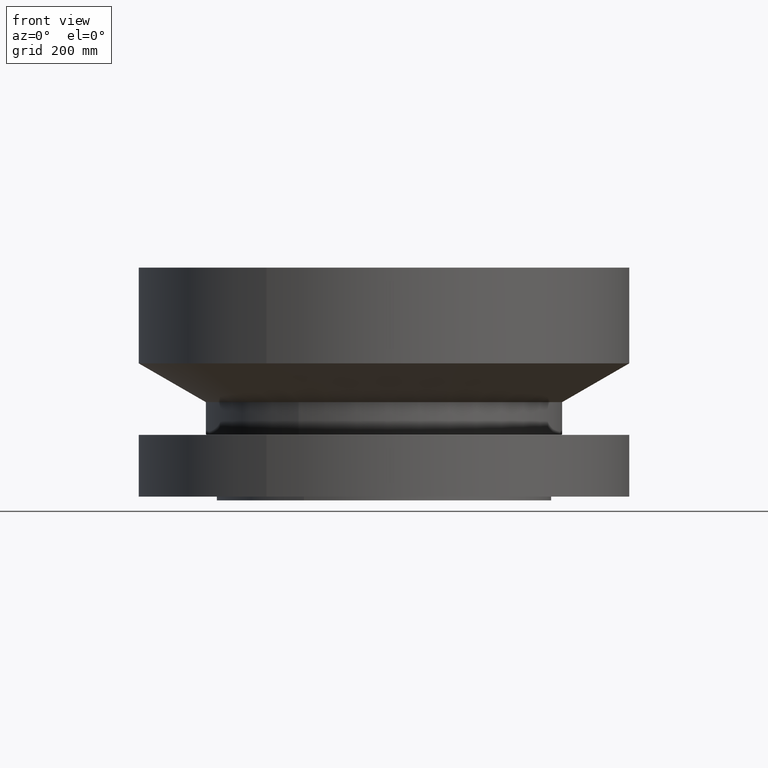
[diagram: clean part render]
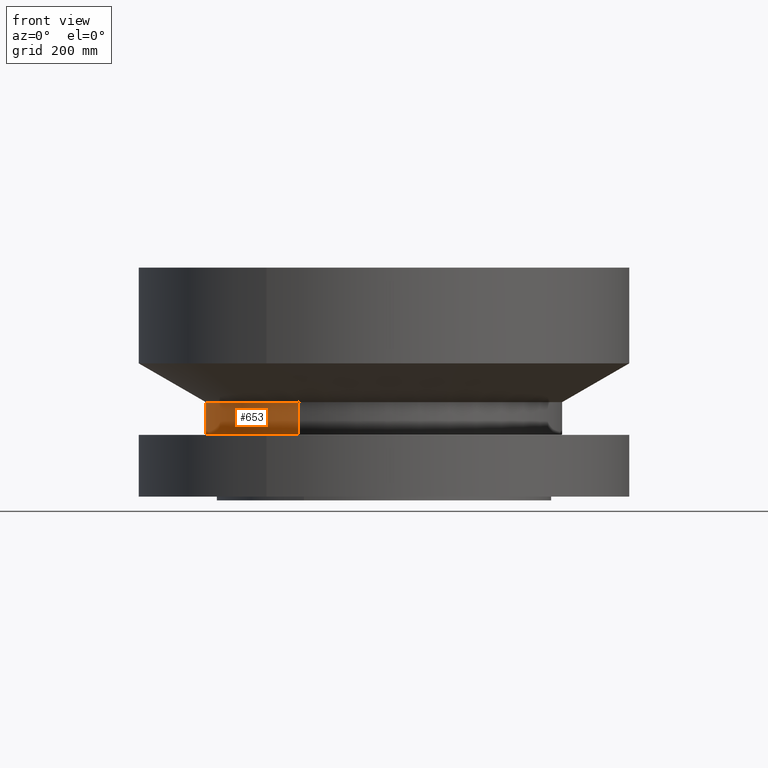
[diagram: same view with one face highlighted and labeled with its STEP entity id]
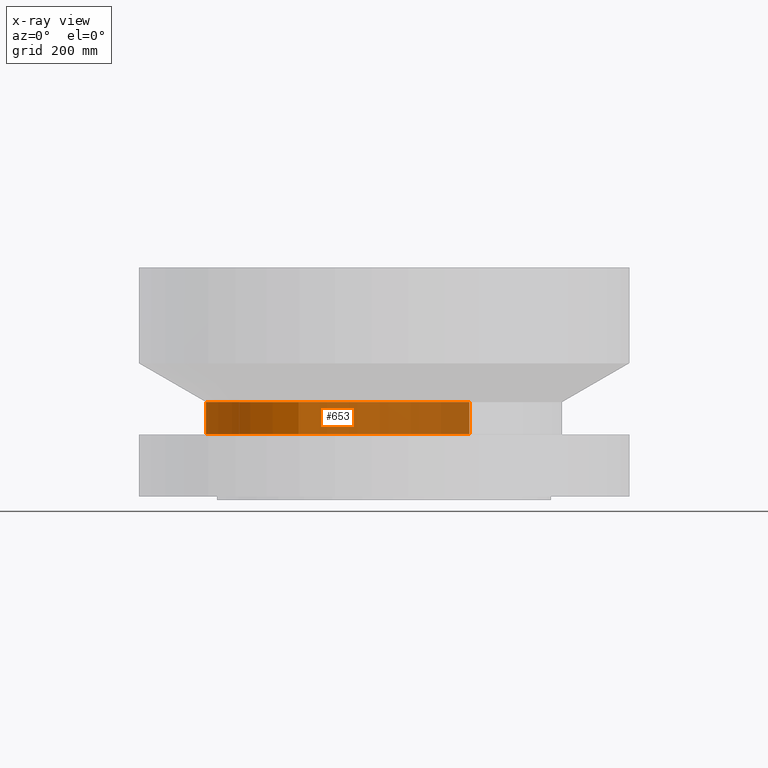
[diagram: x-ray of the same camera — body ghosted, the highlighted face saturated]
A machine part, front view. The second image highlights one B-rep face of the part: STEP entity #653.
The next image is the same camera in x-ray: the body ghosted, the highlighted face saturated — about 65% of this face is hidden behind the body in this view.
In plain terms, the highlighted cylindrical surface (partial cylindrical patch) has radius 311.15 mm, axis along (0, 0, -1).
Its self-contained STEP definition (entity closure, byte-faithful):
#601=AXIS2_PLACEMENT_3D('Circle Axis2P3D',#599,#600,$) ;
#614=AXIS2_PLACEMENT_3D('Cylinder Axis2P3D',#611,#612,#613) ;
#644=AXIS2_PLACEMENT_3D('Circle Axis2P3D',#642,#643,$) ;
#577=CARTESIAN_POINT('Vertex',(5.87296284792,10.7503863832,4.29098076213)) ;
#584=CARTESIAN_POINT('Vertex',(-5.87296284792,-10.7503863832,4.29098076213)) ;
#599=CARTESIAN_POINT('Axis2P3D Location',(0.,0.,4.29098076213)) ;
#611=CARTESIAN_POINT('Axis2P3D Location',(0.,0.,7.75000000003)) ;
#616=CARTESIAN_POINT('Line Origine',(5.87296284792,10.7503863832,5.39549038108)) ;
#620=CARTESIAN_POINT('Vertex',(5.87296284792,10.7503863832,6.50000000003)) ;
#627=CARTESIAN_POINT('Vertex',(-5.87296284792,-10.7503863832,6.50000000003)) ;
#630=CARTESIAN_POINT('Line Origine',(-5.87296284792,-10.7503863832,5.39549038108)) ;
#642=CARTESIAN_POINT('Axis2P3D Location',(0.,0.,6.50000000003)) ;
#600=DIRECTION('Axis2P3D Direction',(-0.,0.,0.0393700787402)) ;
#612=DIRECTION('Axis2P3D Direction',(0.,0.,-0.0393700787402)) ;
#613=DIRECTION('Axis2P3D XDirection',(-0.0188750212049,-0.0345504945626,0.)) ;
#617=DIRECTION('Vector Direction',(0.,0.,-0.0393700787402)) ;
#631=DIRECTION('Vector Direction',(0.,0.,-0.0393700787402)) ;
#643=DIRECTION('Axis2P3D Direction',(0.,0.,-0.0393700787402)) ;
#618=VECTOR('Line Direction',#617,0.0393700787402) ;
#632=VECTOR('Line Direction',#631,0.0393700787402) ;
#648=ORIENTED_EDGE('',*,*,#603,.F.) ;
#649=ORIENTED_EDGE('',*,*,#634,.T.) ;
#650=ORIENTED_EDGE('',*,*,#646,.T.) ;
#651=ORIENTED_EDGE('',*,*,#622,.F.) ;
#653=ADVANCED_FACE('PartBody',(#652),#615,.T.) ;
#602=CIRCLE('generated circle',#601,12.25) ;
#645=CIRCLE('generated circle',#644,12.25) ;
#615=CYLINDRICAL_SURFACE('generated cylinder',#614,12.25) ;
#603=EDGE_CURVE('',#585,#578,#602,.F.) ;
#622=EDGE_CURVE('',#578,#621,#619,.F.) ;
#634=EDGE_CURVE('',#585,#628,#633,.F.) ;
#646=EDGE_CURVE('',#628,#621,#645,.T.) ;
#647=EDGE_LOOP('',(#648,#649,#650,#651)) ;
#652=FACE_OUTER_BOUND('',#647,.T.) ;
#619=LINE('Line',#616,#618) ;
#633=LINE('Line',#630,#632) ;
#578=VERTEX_POINT('',#577) ;
#585=VERTEX_POINT('',#584) ;
#621=VERTEX_POINT('',#620) ;
#628=VERTEX_POINT('',#627) ;